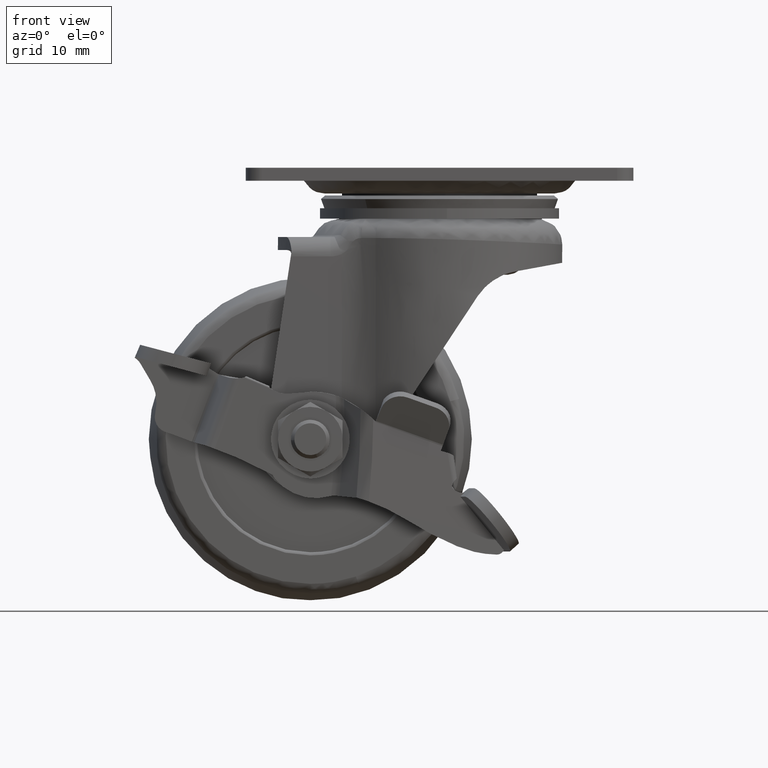
[diagram: clean part render]
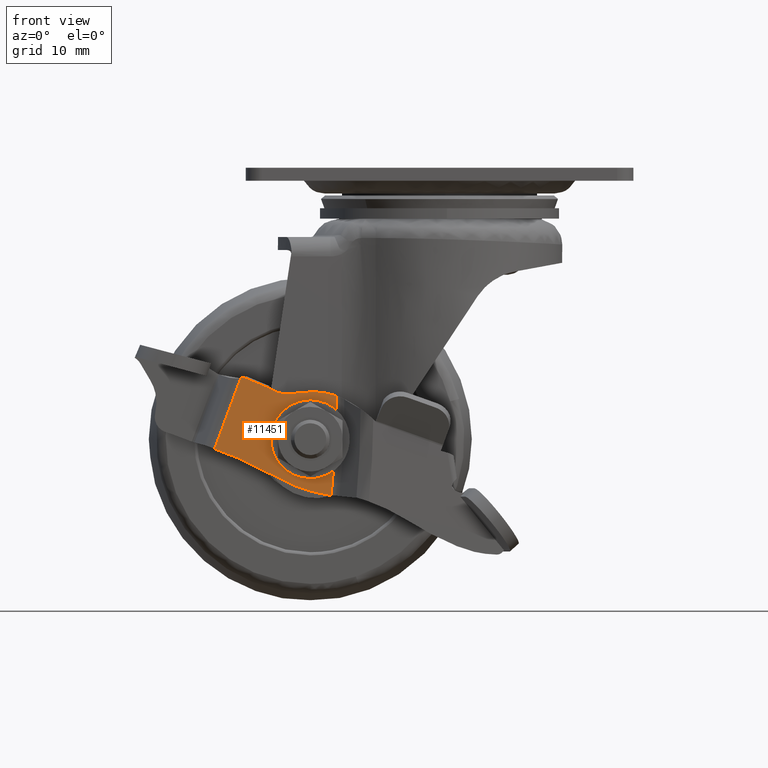
[diagram: same view with one face highlighted and labeled with its STEP entity id]
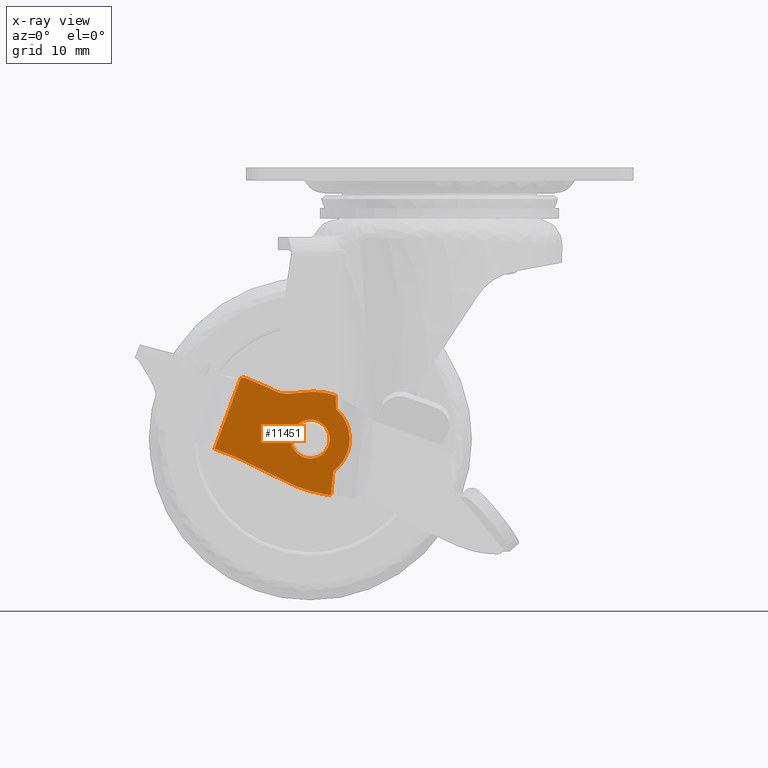
[diagram: x-ray of the same camera — body ghosted, the highlighted face saturated]
A machine part, front view. The second image highlights one B-rep face of the part: STEP entity #11451.
The next image is the same camera in x-ray: the body ghosted, the highlighted face saturated — about 0% of this face is hidden behind the body in this view.
In plain terms, the highlighted face is a freeform B-spline surface patch.
Its self-contained STEP definition (entity closure, byte-faithful):
#7560=CARTESIAN_POINT('',(-21.988958674334569,-16.500240000000002,-39.645016953514322));
#7561=VERTEX_POINT('',#7560);
#7562=CARTESIAN_POINT('',(-19.0,-16.500240000000002,-43.010300000000001));
#7563=VERTEX_POINT('',#7562);
#7564=CARTESIAN_POINT('',(-21.988958674334562,-16.500239999999998,-39.645016953514308));
#7565=CARTESIAN_POINT('',(-22.009999999999998,-16.500240000000002,-39.822035399677119));
#7566=CARTESIAN_POINT('',(-22.010000000000002,-16.500240000000002,-40.000300000000003));
#7567=CARTESIAN_POINT('',(-22.009999999999998,-16.500239999999998,-43.010300000000008));
#7568=CARTESIAN_POINT('',(-19.0,-16.500240000000002,-43.010300000000001));
#7576=(BOUNDED_CURVE()B_SPLINE_CURVE(2,(#7564,#7565,#7566,#7567,#7568),.UNSPECIFIED.,.F.,.U.)B_SPLINE_CURVE_WITH_KNOTS((3,2,3),(0.229562473496550,0.250000000000000,0.500000000000000),.UNSPECIFIED.)CURVE()GEOMETRIC_REPRESENTATION_ITEM()RATIONAL_B_SPLINE_CURVE((0.956026754150460,0.976055948311277,1.0,0.707106781186548,1.0))REPRESENTATION_ITEM(''));
#7577=EDGE_CURVE('',#7561,#7563,#7576,.T.);
#7579=CARTESIAN_POINT('',(-15.995614256761151,-16.500240000000002,-40.184056104179177));
#7580=VERTEX_POINT('',#7579);
#7581=CARTESIAN_POINT('',(-19.0,-16.500240000000002,-43.010300000000001));
#7582=CARTESIAN_POINT('',(-16.168474738952398,-16.500240000000002,-43.010299999999987));
#7583=CARTESIAN_POINT('',(-15.995614256761147,-16.500239999999994,-40.184056104179191));
#7591=(BOUNDED_CURVE()B_SPLINE_CURVE(2,(#7581,#7582,#7583),.UNSPECIFIED.,.F.,.U.)B_SPLINE_CURVE_WITH_KNOTS((3,3),(0.500000000000000,0.739332962221377),.UNSPECIFIED.)CURVE()GEOMETRIC_REPRESENTATION_ITEM()RATIONAL_B_SPLINE_CURVE((1.0,0.719603993307290,0.976072041629070))REPRESENTATION_ITEM(''));
#7592=EDGE_CURVE('',#7563,#7580,#7591,.T.);
#7659=CARTESIAN_POINT('',(-19.0,-16.500240000000002,-36.990300000000012));
#7660=VERTEX_POINT('',#7659);
#7661=CARTESIAN_POINT('',(-19.0,-16.500240000000002,-36.990300000000012));
#7662=CARTESIAN_POINT('',(-21.673405322809444,-16.500239999999998,-36.990300000000012));
#7663=CARTESIAN_POINT('',(-21.988958674334569,-16.500239999999994,-39.645016953514315));
#7671=(BOUNDED_CURVE()B_SPLINE_CURVE(2,(#7661,#7662,#7663),.UNSPECIFIED.,.F.,.U.)B_SPLINE_CURVE_WITH_KNOTS((3,3),(0.0,0.229562473496550),.UNSPECIFIED.)CURVE()GEOMETRIC_REPRESENTATION_ITEM()RATIONAL_B_SPLINE_CURVE((1.0,0.731050832875270,0.956026754150461))REPRESENTATION_ITEM(''));
#7672=EDGE_CURVE('',#7660,#7561,#7671,.T.);
#7706=CARTESIAN_POINT('',(-15.995614256761145,-16.500240000000002,-40.184056104179184));
#7707=CARTESIAN_POINT('',(-15.990000000000004,-16.500240000000002,-40.092263817708520));
#7708=CARTESIAN_POINT('',(-15.990000000000000,-16.500240000000002,-40.000300000000003));
#7709=CARTESIAN_POINT('',(-15.990000000000007,-16.500239999999998,-36.990300000000012));
#7710=CARTESIAN_POINT('',(-19.0,-16.500240000000002,-36.990300000000012));
#7718=(BOUNDED_CURVE()B_SPLINE_CURVE(2,(#7706,#7707,#7708,#7709,#7710),.UNSPECIFIED.,.F.,.U.)B_SPLINE_CURVE_WITH_KNOTS((3,2,3),(0.739332962221378,0.750000000000000,1.0),.UNSPECIFIED.)CURVE()GEOMETRIC_REPRESENTATION_ITEM()RATIONAL_B_SPLINE_CURVE((0.976072041629072,0.987502787879259,1.0,0.707106781186548,1.0))REPRESENTATION_ITEM(''));
#7719=EDGE_CURVE('',#7580,#7660,#7718,.T.);
#9032=CARTESIAN_POINT('',(-15.026892564508151,-16.500240000000002,-35.358477372406497));
#9033=VERTEX_POINT('',#9032);
#9071=CARTESIAN_POINT('',(-15.038974553090400,-16.500240000000002,-33.256422233101063));
#9072=VERTEX_POINT('',#9071);
#9088=CARTESIAN_POINT('',(-15.026892564508151,-16.500240000000002,-35.358477372406497));
#9089=CARTESIAN_POINT('',(-15.023967523734747,-16.500239999999994,-34.307398268647191));
#9090=CARTESIAN_POINT('',(-15.038974553090400,-16.500240000000002,-33.256422233101112));
#9098=(BOUNDED_CURVE()B_SPLINE_CURVE(2,(#9088,#9089,#9090),.UNSPECIFIED.,.F.,.U.)CURVE()GEOMETRIC_REPRESENTATION_ITEM()QUASI_UNIFORM_CURVE()RATIONAL_B_SPLINE_CURVE((1.0,0.999963615287230,1.0))REPRESENTATION_ITEM(''));
#9099=EDGE_CURVE('',#9033,#9072,#9098,.T.);
#9123=CARTESIAN_POINT('',(-15.787037680138949,-16.500240000000002,-48.685124743669000));
#9124=VERTEX_POINT('',#9123);
#9155=CARTESIAN_POINT('',(-15.428178819458051,-16.500240000000002,-44.957536473503502));
#9156=VERTEX_POINT('',#9155);
#9170=CARTESIAN_POINT('',(-15.787037680138960,-16.500240000000002,-48.685124743668993));
#9171=CARTESIAN_POINT('',(-15.579281382150855,-16.500239999999998,-46.824057666059801));
#9172=CARTESIAN_POINT('',(-15.428178819458180,-16.500240000000002,-44.957536473503538));
#9180=(BOUNDED_CURVE()B_SPLINE_CURVE(2,(#9170,#9171,#9172),.UNSPECIFIED.,.F.,.U.)CURVE()GEOMETRIC_REPRESENTATION_ITEM()QUASI_UNIFORM_CURVE()RATIONAL_B_SPLINE_CURVE((1.0,0.999884522865685,1.0))REPRESENTATION_ITEM(''));
#9181=EDGE_CURVE('',#9124,#9156,#9180,.T.);
#9313=CARTESIAN_POINT('',(-33.823961426087997,-16.500240000000002,-41.510275391159347));
#9314=VERTEX_POINT('',#9313);
#9332=CARTESIAN_POINT('',(-29.772781683252202,-16.500240000000002,-30.564271087004698));
#9333=VERTEX_POINT('',#9332);
#9334=CARTESIAN_POINT('',(-29.772781683252202,-16.500240000000002,-30.564271087004698));
#9335=CARTESIAN_POINT('',(-33.823961426087997,-16.500240000000002,-41.510275391159347));
#9336=QUASI_UNIFORM_CURVE('',1,(#9334,#9335),.UNSPECIFIED.,.F.,.U.);
#9337=EDGE_CURVE('',#9333,#9314,#9336,.T.);
#9423=CARTESIAN_POINT('',(-29.219293692192199,-16.500240000000002,-30.472307577246049));
#9424=VERTEX_POINT('',#9423);
#9438=CARTESIAN_POINT('',(-25.031881805723099,-16.500240000000002,-32.249199340504497));
#9439=VERTEX_POINT('',#9438);
#9440=CARTESIAN_POINT('',(-25.031881805723099,-16.500240000000002,-32.249199340504497));
#9441=CARTESIAN_POINT('',(-29.219293692192199,-16.500240000000002,-30.472307577246049));
#9442=QUASI_UNIFORM_CURVE('',1,(#9440,#9441),.UNSPECIFIED.,.F.,.U.);
#9443=EDGE_CURVE('',#9439,#9424,#9442,.T.);
#9861=CARTESIAN_POINT('',(-15.026892564508129,-16.500240000000002,-35.358477372406483));
#9862=CARTESIAN_POINT('',(-12.771322397743262,-16.500239999999998,-37.289103188992911));
#9863=CARTESIAN_POINT('',(-12.895332043276300,-16.500240000000002,-40.255504110764043));
#9864=CARTESIAN_POINT('',(-13.019341688809332,-16.500239999999998,-43.221905032535162));
#9865=CARTESIAN_POINT('',(-15.428178819458120,-16.500240000000002,-44.957536473503403));
#9873=(BOUNDED_CURVE()B_SPLINE_CURVE(2,(#9861,#9862,#9863,#9864,#9865),.UNSPECIFIED.,.F.,.U.)B_SPLINE_CURVE_WITH_KNOTS((3,2,3),(0.0,0.500000000000000,1.0),.UNSPECIFIED.)CURVE()GEOMETRIC_REPRESENTATION_ITEM()RATIONAL_B_SPLINE_CURVE((1.0,0.899434233799842,1.0,0.899434233799842,1.0))REPRESENTATION_ITEM(''));
#9874=EDGE_CURVE('',#9033,#9156,#9873,.T.);
#10706=CARTESIAN_POINT('',(-25.250147363879499,-16.500240000000002,-45.341293294064499));
#10707=VERTEX_POINT('',#10706);
#10730=CARTESIAN_POINT('',(-21.196545047147151,-16.500240000000002,-47.309988099824693));
#10731=VERTEX_POINT('',#10730);
#10737=CARTESIAN_POINT('',(-21.196545047147151,-16.500240000000002,-47.309988099824693));
#10738=CARTESIAN_POINT('',(-23.303267798692136,-16.500239999999994,-46.490201681368568));
#10739=CARTESIAN_POINT('',(-25.250147363879471,-16.500240000000002,-45.341293294064492));
#10747=(BOUNDED_CURVE()B_SPLINE_CURVE(2,(#10737,#10738,#10739),.UNSPECIFIED.,.F.,.U.)CURVE()GEOMETRIC_REPRESENTATION_ITEM()QUASI_UNIFORM_CURVE()RATIONAL_B_SPLINE_CURVE((1.0,0.996720113686482,1.0))REPRESENTATION_ITEM(''));
#10748=EDGE_CURVE('',#10731,#10707,#10747,.T.);
#10783=CARTESIAN_POINT('',(-16.556638972832250,-16.500240000000002,-48.595839623092097));
#10784=VERTEX_POINT('',#10783);
#10790=CARTESIAN_POINT('',(-16.556638972832239,-16.500240000000002,-48.595839623092097));
#10791=CARTESIAN_POINT('',(-18.941590570287890,-16.500239999999998,-48.187456659979183));
#10792=CARTESIAN_POINT('',(-21.196545047147140,-16.500240000000002,-47.309988099824700));
#10800=(BOUNDED_CURVE()B_SPLINE_CURVE(2,(#10790,#10791,#10792),.UNSPECIFIED.,.F.,.U.)CURVE()GEOMETRIC_REPRESENTATION_ITEM()QUASI_UNIFORM_CURVE()RATIONAL_B_SPLINE_CURVE((1.0,0.994928432820403,1.0))REPRESENTATION_ITEM(''));
#10801=EDGE_CURVE('',#10784,#10731,#10800,.T.);
#10834=CARTESIAN_POINT('',(-15.787037680138949,-16.500240000000002,-48.685124743668993));
#10835=CARTESIAN_POINT('',(-16.171939209835539,-16.500239999999994,-48.641351756681104));
#10836=CARTESIAN_POINT('',(-16.556638972832179,-16.500240000000002,-48.595839623092083));
#10844=(BOUNDED_CURVE()B_SPLINE_CURVE(2,(#10834,#10835,#10836),.UNSPECIFIED.,.F.,.U.)CURVE()GEOMETRIC_REPRESENTATION_ITEM()QUASI_UNIFORM_CURVE()RATIONAL_B_SPLINE_CURVE((1.0,0.999997446657062,1.0))REPRESENTATION_ITEM(''));
#10845=EDGE_CURVE('',#9124,#10784,#10844,.T.);
#10918=CARTESIAN_POINT('',(-20.264334298878950,-16.500240000000002,-32.800836181282847));
#10919=VERTEX_POINT('',#10918);
#10925=CARTESIAN_POINT('',(-20.264334298878961,-16.500240000000002,-32.800836181282833));
#10926=CARTESIAN_POINT('',(-17.593075346082927,-16.500239999999994,-32.356754454129742));
#10927=CARTESIAN_POINT('',(-15.038974553090391,-16.500240000000002,-33.256422233101027));
#10935=(BOUNDED_CURVE()B_SPLINE_CURVE(2,(#10925,#10926,#10927),.UNSPECIFIED.,.F.,.U.)CURVE()GEOMETRIC_REPRESENTATION_ITEM()QUASI_UNIFORM_CURVE()RATIONAL_B_SPLINE_CURVE((1.0,0.968489107098645,1.0))REPRESENTATION_ITEM(''));
#10936=EDGE_CURVE('',#10919,#9072,#10935,.T.);
#10971=CARTESIAN_POINT('',(-22.663113956787601,-16.500240000000002,-32.989300373977997));
#10972=VERTEX_POINT('',#10971);
#10978=CARTESIAN_POINT('',(-20.264334298878950,-16.500240000000002,-32.800836181282868));
#10979=CARTESIAN_POINT('',(-21.455568597948226,-16.500239999999998,-32.998872182807126));
#10980=CARTESIAN_POINT('',(-22.663113956787591,-16.500240000000002,-32.989300373978011));
#10988=(BOUNDED_CURVE()B_SPLINE_CURVE(2,(#10978,#10979,#10980),.UNSPECIFIED.,.F.,.U.)CURVE()GEOMETRIC_REPRESENTATION_ITEM()QUASI_UNIFORM_CURVE()RATIONAL_B_SPLINE_CURVE((1.0,0.996275695230416,1.0))REPRESENTATION_ITEM(''));
#10989=EDGE_CURVE('',#10919,#10972,#10988,.T.);
#11017=CARTESIAN_POINT('',(-22.663113956787601,-16.500240000000002,-32.989300373977962));
#11018=CARTESIAN_POINT('',(-23.959905308499724,-16.500239999999994,-32.979021141964864));
#11019=CARTESIAN_POINT('',(-25.031881805723081,-16.500240000000002,-32.249199340504482));
#11027=(BOUNDED_CURVE()B_SPLINE_CURVE(2,(#11017,#11018,#11019),.UNSPECIFIED.,.F.,.U.)CURVE()GEOMETRIC_REPRESENTATION_ITEM()QUASI_UNIFORM_CURVE()RATIONAL_B_SPLINE_CURVE((1.0,0.956829776071362,1.0))REPRESENTATION_ITEM(''));
#11028=EDGE_CURVE('',#10972,#9439,#11027,.T.);
#11117=CARTESIAN_POINT('',(-30.380093690554752,-16.500240000000002,-42.847119154746743));
#11118=VERTEX_POINT('',#11117);
#11119=CARTESIAN_POINT('',(-30.380093690554752,-16.500240000000002,-42.847119154746743));
#11120=CARTESIAN_POINT('',(-27.714408262166021,-16.500239999999998,-43.887064298376558));
#11121=CARTESIAN_POINT('',(-25.250147363879499,-16.500240000000002,-45.341293294064499));
#11129=(BOUNDED_CURVE()B_SPLINE_CURVE(2,(#11119,#11120,#11121),.UNSPECIFIED.,.F.,.U.)CURVE()GEOMETRIC_REPRESENTATION_ITEM()QUASI_UNIFORM_CURVE()RATIONAL_B_SPLINE_CURVE((1.0,0.996754941165083,1.0))REPRESENTATION_ITEM(''));
#11130=EDGE_CURVE('',#11118,#10707,#11129,.T.);
#11393=CARTESIAN_POINT('',(-34.869562309856811,-16.500240000000002,-29.562576947245478));
#11394=CARTESIAN_POINT('',(-11.845449745977120,-16.500240000000002,-29.562576947245478));
#11395=CARTESIAN_POINT('',(-34.869562309856811,-16.500240000000002,-49.594854070987367));
#11396=CARTESIAN_POINT('',(-11.845449745977120,-16.500240000000002,-49.594854070987367));
#11397=B_SPLINE_SURFACE_WITH_KNOTS('',1,1,((#11393,#11395),(#11394,#11396)),.UNSPECIFIED.,.F.,.F.,.U.,(2,2),(2,2),(0.0,23.024112563879690),(0.0,20.032277123741888),.UNSPECIFIED.);
#11398=ORIENTED_EDGE('',*,*,#10845,.F.);
#11399=ORIENTED_EDGE('',*,*,#9181,.T.);
#11400=ORIENTED_EDGE('',*,*,#9874,.F.);
#11401=ORIENTED_EDGE('',*,*,#9099,.T.);
#11402=ORIENTED_EDGE('',*,*,#10936,.F.);
#11403=ORIENTED_EDGE('',*,*,#10989,.T.);
#11404=ORIENTED_EDGE('',*,*,#11028,.T.);
#11405=ORIENTED_EDGE('',*,*,#9443,.T.);
#11406=CARTESIAN_POINT('',(-29.251738999999901,-16.500240000000002,-30.496531000000250));
#11407=VERTEX_POINT('',#11406);
#11408=CARTESIAN_POINT('',(-29.219293692192199,-16.500240000000002,-30.472307577246049));
#11409=CARTESIAN_POINT('',(-29.251738999999901,-16.500240000000002,-30.496531000000250));
#11410=QUASI_UNIFORM_CURVE('',1,(#11408,#11409),.UNSPECIFIED.,.F.,.U.);
#11411=EDGE_CURVE('',#9424,#11407,#11410,.T.);
#11412=ORIENTED_EDGE('',*,*,#11411,.T.);
#11413=CARTESIAN_POINT('',(-29.251738999999901,-16.500240000000002,-30.496531000000271));
#11414=CARTESIAN_POINT('',(-29.510936449751316,-16.500239999999998,-30.540584144901597));
#11415=CARTESIAN_POINT('',(-29.772781683252202,-16.500240000000002,-30.564271087004730));
#11423=(BOUNDED_CURVE()B_SPLINE_CURVE(2,(#11413,#11414,#11415),.UNSPECIFIED.,.F.,.U.)CURVE()GEOMETRIC_REPRESENTATION_ITEM()QUASI_UNIFORM_CURVE()RATIONAL_B_SPLINE_CURVE((1.0,0.999236961884196,1.0))REPRESENTATION_ITEM(''));
#11424=EDGE_CURVE('',#11407,#9333,#11423,.T.);
#11425=ORIENTED_EDGE('',*,*,#11424,.T.);
#11426=ORIENTED_EDGE('',*,*,#9337,.T.);
#11427=CARTESIAN_POINT('',(-33.823961426087997,-16.500240000000002,-41.510275391159347));
#11428=CARTESIAN_POINT('',(-32.100901462523240,-16.500240000000002,-42.175796336730258));
#11429=CARTESIAN_POINT('',(-30.380093690554752,-16.500240000000002,-42.847119154746743));
#11437=(BOUNDED_CURVE()B_SPLINE_CURVE(2,(#11427,#11428,#11429),.UNSPECIFIED.,.F.,.U.)CURVE()GEOMETRIC_REPRESENTATION_ITEM()QUASI_UNIFORM_CURVE()RATIONAL_B_SPLINE_CURVE((1.0,0.999998580899066,1.0))REPRESENTATION_ITEM(''));
#11438=EDGE_CURVE('',#9314,#11118,#11437,.T.);
#11439=ORIENTED_EDGE('',*,*,#11438,.T.);
#11440=ORIENTED_EDGE('',*,*,#11130,.T.);
#11441=ORIENTED_EDGE('',*,*,#10748,.F.);
#11442=ORIENTED_EDGE('',*,*,#10801,.F.);
#11443=EDGE_LOOP('',(#11398,#11399,#11400,#11401,#11402,#11403,#11404,#11405,#11412,#11425,#11426,#11439,#11440,#11441,#11442));
#11444=FACE_OUTER_BOUND('',#11443,.T.);
#11445=ORIENTED_EDGE('',*,*,#7592,.F.);
#11446=ORIENTED_EDGE('',*,*,#7577,.F.);
#11447=ORIENTED_EDGE('',*,*,#7672,.F.);
#11448=ORIENTED_EDGE('',*,*,#7719,.F.);
#11449=EDGE_LOOP('',(#11445,#11446,#11447,#11448));
#11450=FACE_BOUND('',#11449,.T.);
#11451=ADVANCED_FACE('',(#11444,#11450),#11397,.F.);